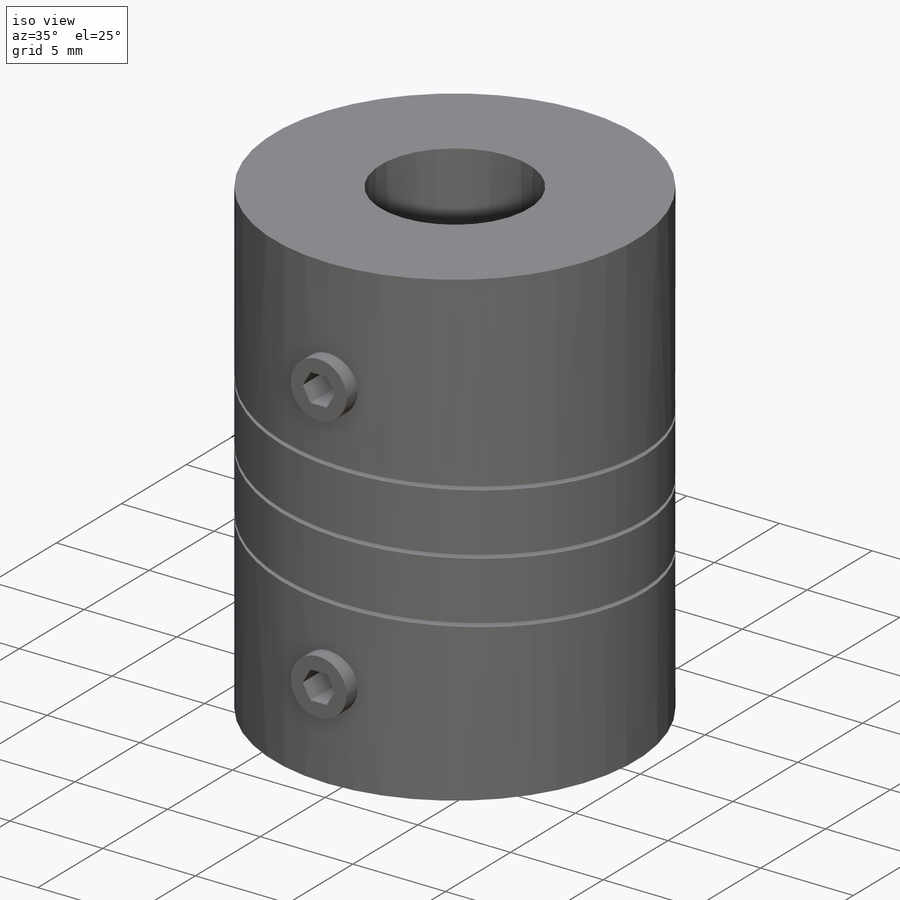
[diagram: iso view]
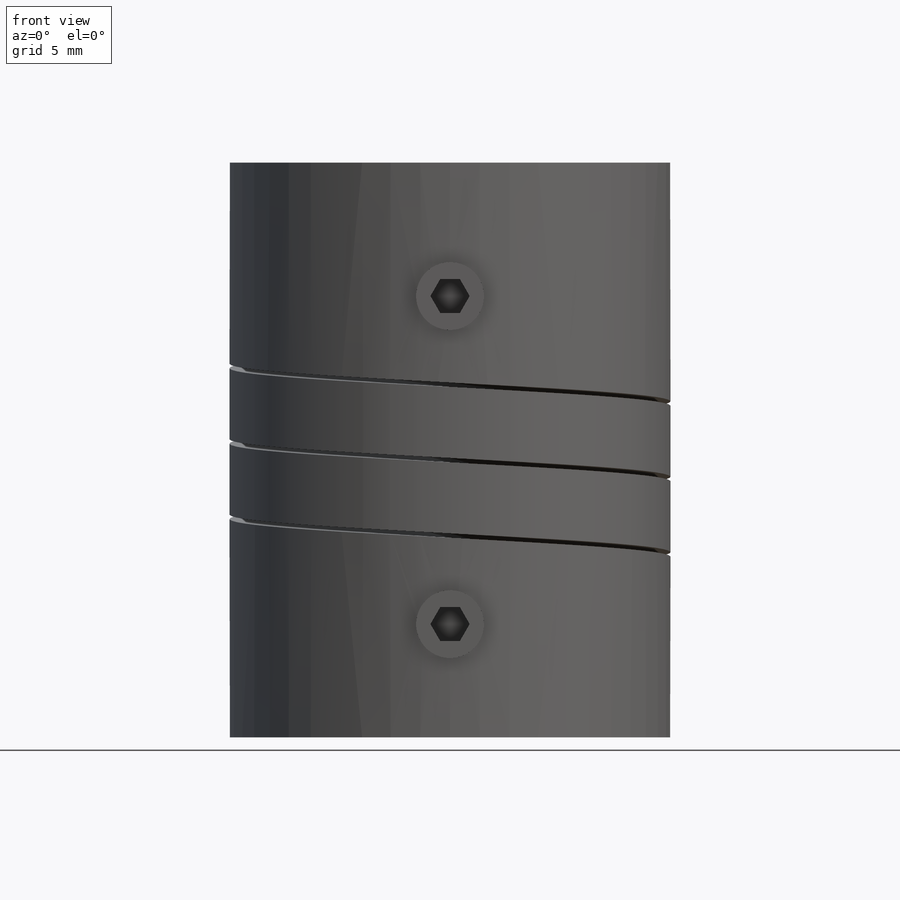
[diagram: front view]
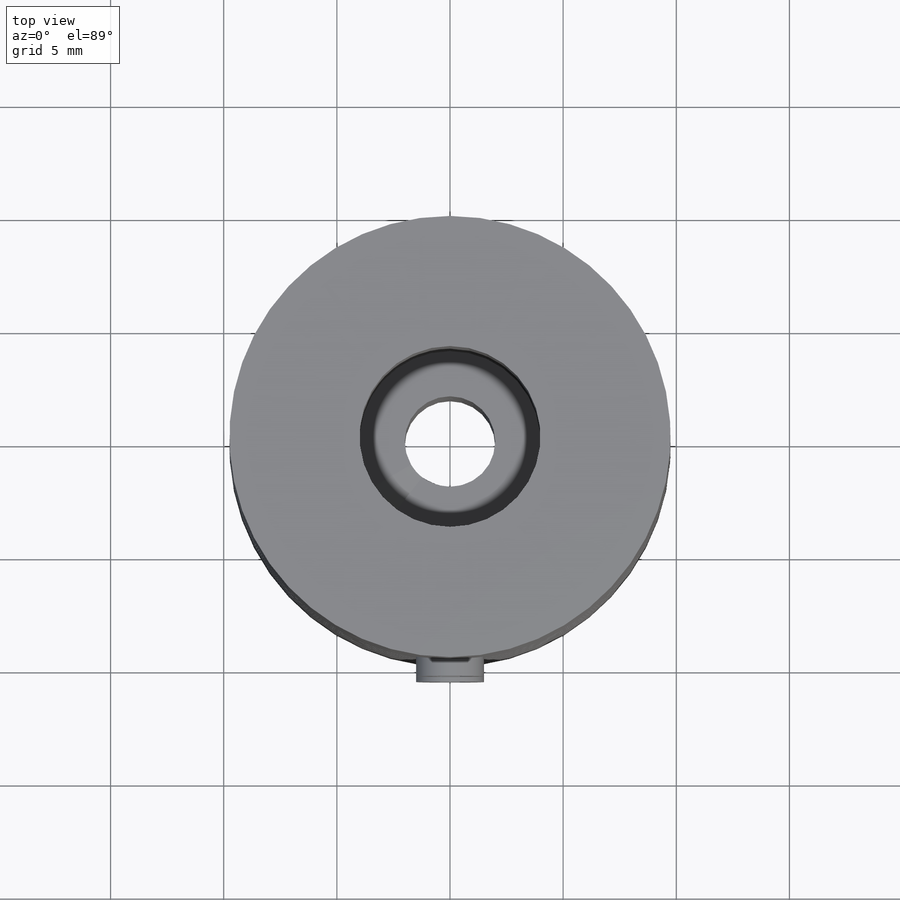
[diagram: top view]
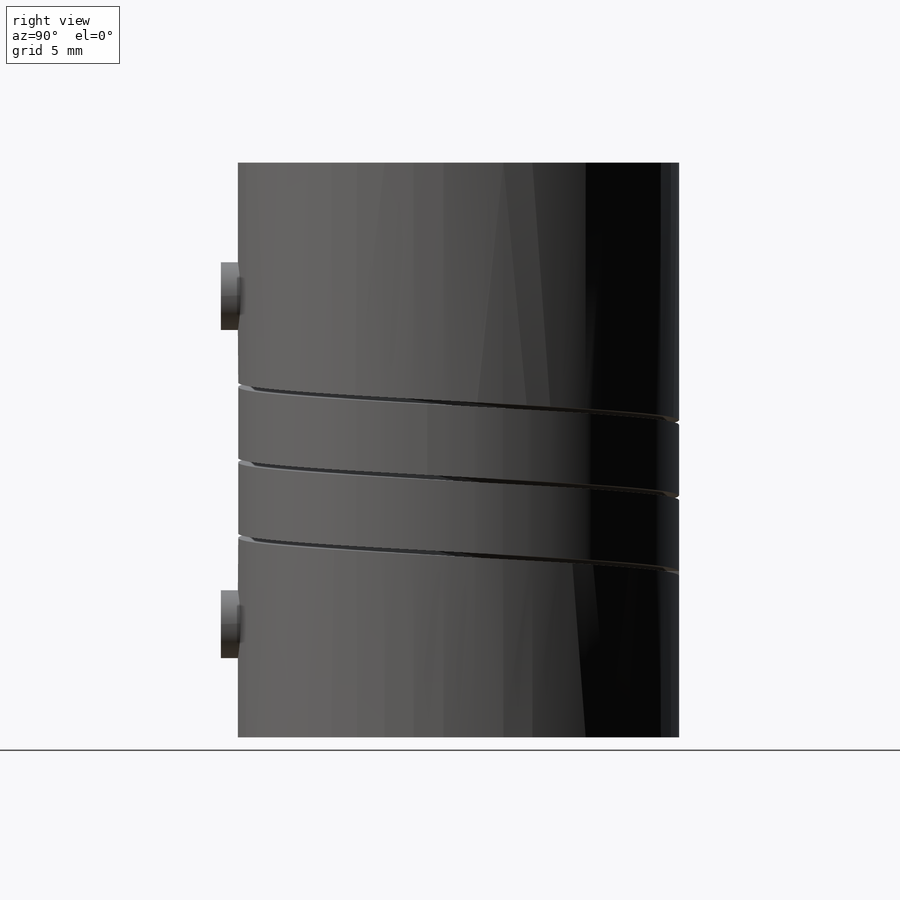
[diagram: right view]
SOLIDWORKS PART (.sldprt)
format: sldprt  version: not decoded by parser v0  size: 290,304 bytes
history: native  units: mm
features: sketch x9, cut_extrude x4, plane x3, extrude x2, material x1, helix x1, sweep x1 (+16 scaffold rows collapsed)
feature tree (37):
  scaffold x16  (default folders/planes/origin — collapsed)
  material  "Material <not specified>"
  sketch  "Sketch1"  dims[D1=~20.177233mm]
  extrude  "Extrude1"  Depth=25.4mm
  sketch  "Sketch2"  dims[D1=~1.487932mm]
  cut_extrude  "Extrude2"  Depth=12.7mm
  sketch  "Sketch3"  dims[D1=~2.04435mm]
  cut_extrude  "Extrude3"  Depth=12.7mm
  plane  "Plane1"  Offset=9.75mm
  sketch  "Sketch4"  dims[D1=~2.124253mm]
  cut_extrude  "Extrude5"  Depth=9.75mm
  plane  "Plane2"  Offset=7.5mm
  sketch  "Sketch6"  dims[D1=~2.993487mm]
  sketch  "Sketch7"
  helix  "Helix/Spiral2"  Pitch=10mm
  sketch  "Sketch10"
  sweep  "Cut-Sweep8"
  plane  "Plane3"  Offset=7.5mm
  sketch  "Sketch11"
  extrude  "Extrude6"  Depth=3mm
  sketch  "Sketch12"
  cut_extrude  "Extrude7"  Depth=3mm
decode coverage: 12 of 17 modeling features carry decoded parameters
note: ~ marks probable driven/reference dimensions
note: suppression state not decoded; provenance and decode notes live in map.json
